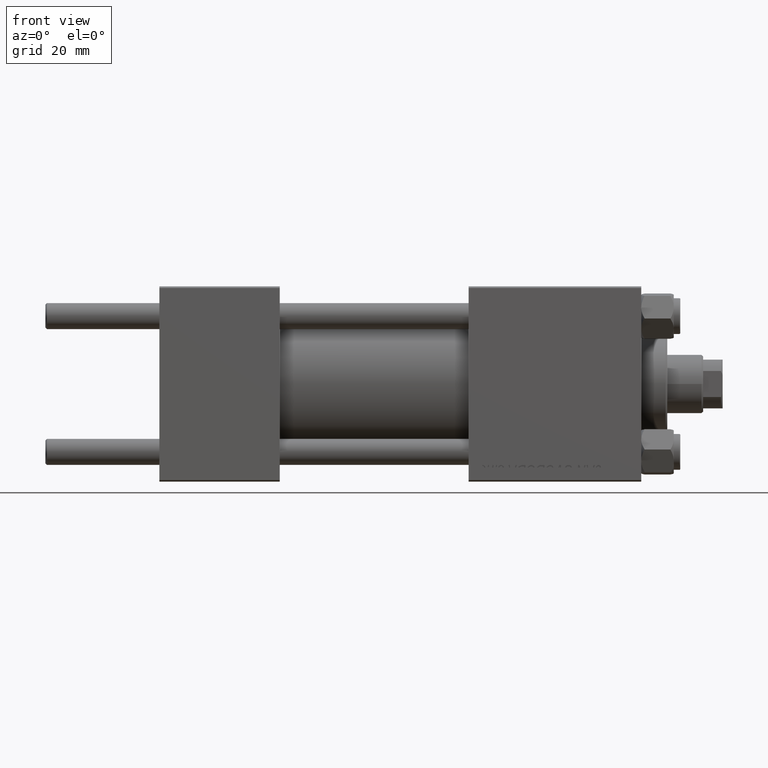
[diagram: clean part render]
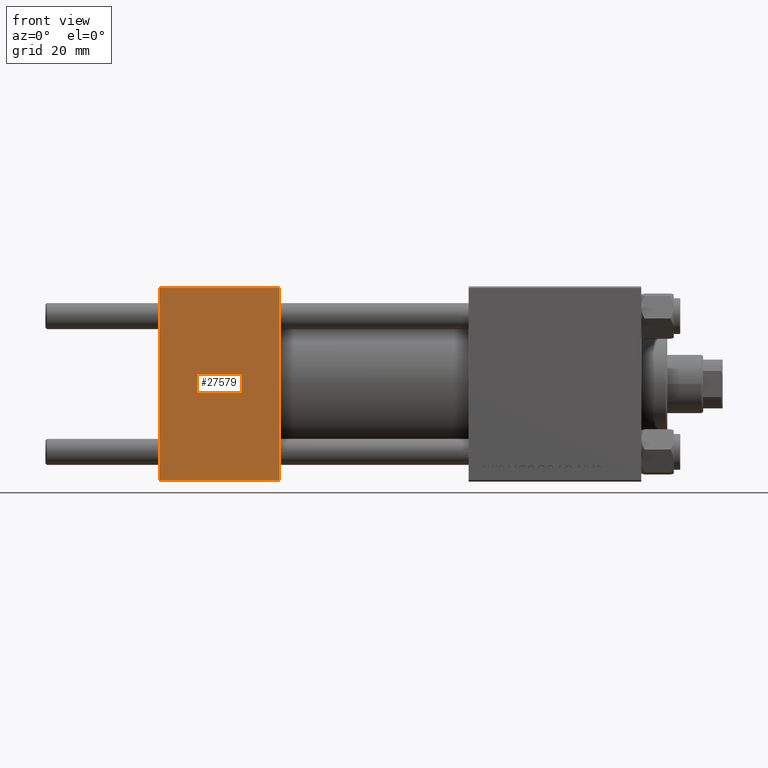
[diagram: same view with one face highlighted and labeled with its STEP entity id]
A machine part, front view. The second image highlights one B-rep face of the part: STEP entity #27579.
In plain terms, the highlighted planar face has unit normal (0, 1, 0).
Its self-contained STEP definition (entity closure, byte-faithful):
#1088 = VERTEX_POINT ( 'NONE', #43841 ) ;
#1570 = VECTOR ( 'NONE', #11622, 1000.000000000000000 ) ;
#3223 = VERTEX_POINT ( 'NONE', #24339 ) ;
#4044 = LINE ( 'NONE', #34650, #1570 ) ;
#4133 = VECTOR ( 'NONE', #14769, 1000.000000000000000 ) ;
#5765 = VECTOR ( 'NONE', #18460, 1000.000000000000000 ) ;
#6831 = CARTESIAN_POINT ( 'NONE',  ( 37.00000000000000000, -30.00000000000000000, 29.99999999999999289 ) ) ;
#7145 = LINE ( 'NONE', #13731, #29534 ) ;
#9942 = VERTEX_POINT ( 'NONE', #49042 ) ;
#10338 = AXIS2_PLACEMENT_3D ( 'NONE', #41351, #22105, #37296 ) ;
#11622 = DIRECTION ( 'NONE',  ( 1.000000000000000000, 0.000000000000000000, 0.000000000000000000 ) ) ;
#13731 = CARTESIAN_POINT ( 'NONE',  ( 37.00000000000000000, -30.00000000000000000, 29.49999999999999289 ) ) ;
#14769 = DIRECTION ( 'NONE',  ( 0.000000000000000000, 0.000000000000000000, -1.000000000000000000 ) ) ;
#17521 = DIRECTION ( 'NONE',  ( -1.000000000000000000, 0.000000000000000000, 0.000000000000000000 ) ) ;
#17841 = ORIENTED_EDGE ( 'NONE', *, *, #19637, .T. ) ;
#18460 = DIRECTION ( 'NONE',  ( 0.000000000000000000, 0.000000000000000000, -1.000000000000000000 ) ) ;
#19637 = EDGE_CURVE ( 'NONE', #48652, #3223, #7145, .T. ) ;
#22105 = DIRECTION ( 'NONE',  ( -0.000000000000000000, 1.000000000000000000, 0.000000000000000000 ) ) ;
#24339 = CARTESIAN_POINT ( 'NONE',  ( 0.000000000000000000, -30.00000000000000000, 29.49999999999999289 ) ) ;
#26060 = LINE ( 'NONE', #6831, #5765 ) ;
#27416 = ORIENTED_EDGE ( 'NONE', *, *, #41632, .F. ) ;
#27579 = ADVANCED_FACE ( 'NONE', ( #41598 ), #45394, .F. ) ;
#29534 = VECTOR ( 'NONE', #17521, 1000.000000000000000 ) ;
#33899 = CARTESIAN_POINT ( 'NONE',  ( 37.00000000000000000, -30.00000000000000000, 29.49999999999999289 ) ) ;
#33993 = LINE ( 'NONE', #49434, #4133 ) ;
#34019 = EDGE_CURVE ( 'NONE', #9942, #1088, #4044, .T. ) ;
#34650 = CARTESIAN_POINT ( 'NONE',  ( 37.00000000000000000, -30.00000000000000000, -29.50000000000001776 ) ) ;
#35199 = ORIENTED_EDGE ( 'NONE', *, *, #41917, .T. ) ;
#37296 = DIRECTION ( 'NONE',  ( 0.000000000000000000, -0.000000000000000000, 1.000000000000000000 ) ) ;
#37328 = EDGE_LOOP ( 'NONE', ( #35199, #44851, #27416, #17841 ) ) ;
#41351 = CARTESIAN_POINT ( 'NONE',  ( 37.00000000000000000, -30.00000000000000000, 29.99999999999999289 ) ) ;
#41598 = FACE_OUTER_BOUND ( 'NONE', #37328, .T. ) ;
#41632 = EDGE_CURVE ( 'NONE', #48652, #1088, #26060, .T. ) ;
#41917 = EDGE_CURVE ( 'NONE', #3223, #9942, #33993, .T. ) ;
#43841 = CARTESIAN_POINT ( 'NONE',  ( 37.00000000000000000, -30.00000000000000000, -29.50000000000001776 ) ) ;
#44851 = ORIENTED_EDGE ( 'NONE', *, *, #34019, .T. ) ;
#45394 = PLANE ( 'NONE',  #10338 ) ;
#48652 = VERTEX_POINT ( 'NONE', #33899 ) ;
#49042 = CARTESIAN_POINT ( 'NONE',  ( 0.000000000000000000, -30.00000000000000000, -29.50000000000001776 ) ) ;
#49434 = CARTESIAN_POINT ( 'NONE',  ( 0.000000000000000000, -30.00000000000000000, 29.99999999999999289 ) ) ;